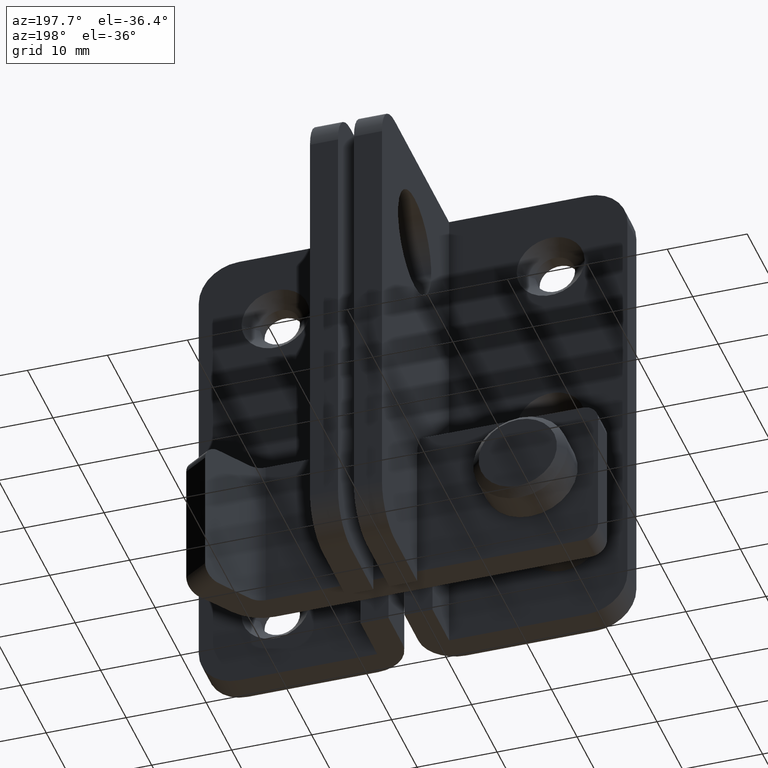
[diagram: clean part render]
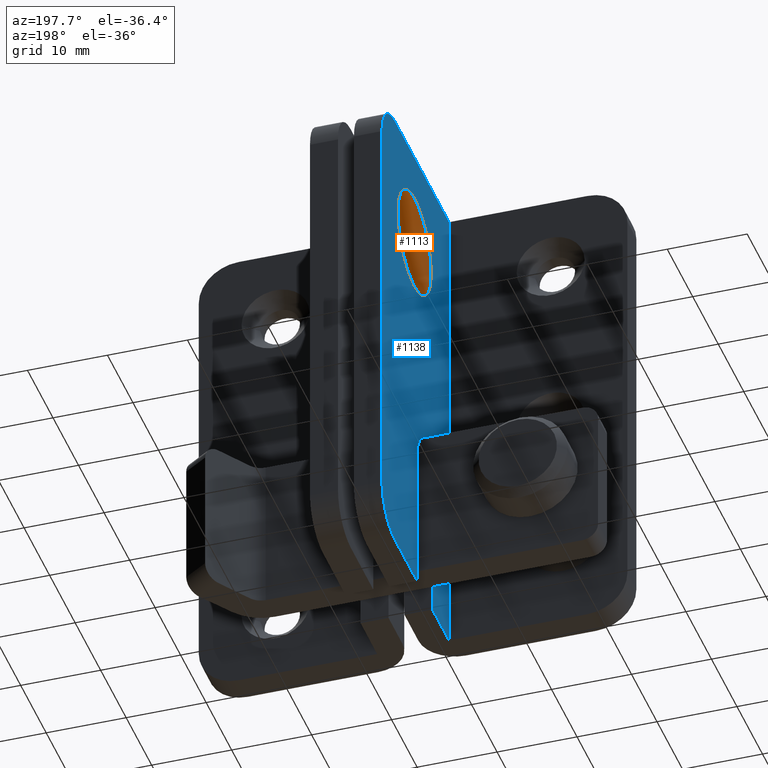
[diagram: same view with the hole feature highlighted: cylindrical wall and planar end face, labeled with their STEP entity ids]
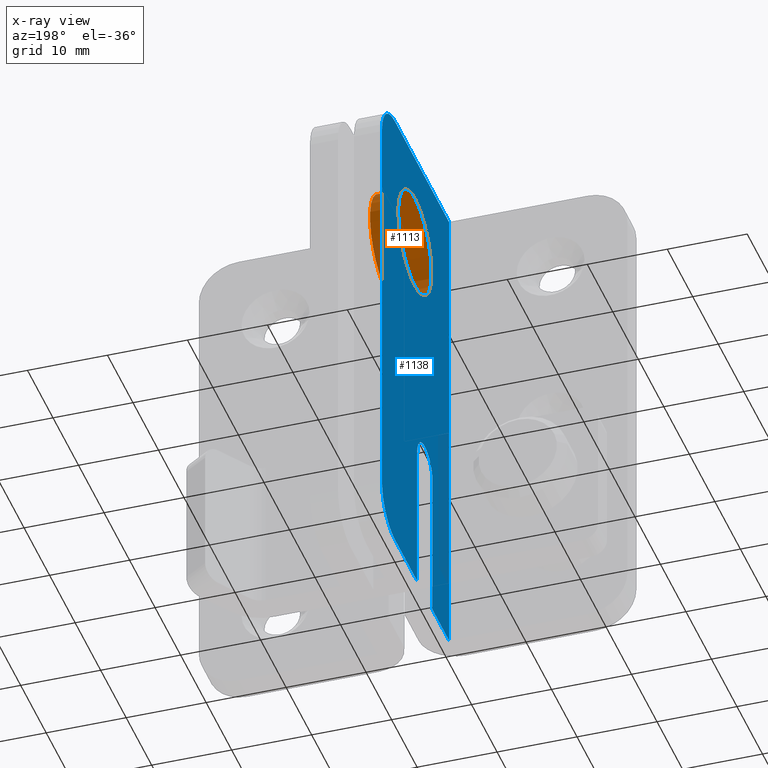
[diagram: x-ray of the same camera — body ghosted, the hole faces saturated]
A machine part, auxiliary view. The highlighted faces form one hole feature of diameter 13 mm: the cylindrical wall (entity #1113, orange) and its adjacent planar end face (entity #1138, blue) — they share a circular edge in the B-rep.
The next image is the same camera in x-ray (body ghosted, the hole faces saturated) — the bore reads through the body.
Wall:
#45=FACE_BOUND('',#182,.T.);
#114=FACE_OUTER_BOUND('',#181,.T.);
#181=EDGE_LOOP('',(#790));
#182=EDGE_LOOP('',(#791));
#460=CIRCLE('',#1187,6.5);
#461=CIRCLE('',#1188,6.5);
#524=VERTEX_POINT('',#1701);
#525=VERTEX_POINT('',#1703);
#636=EDGE_CURVE('',#524,#524,#460,.T.);
#637=EDGE_CURVE('',#525,#525,#461,.T.);
#790=ORIENTED_EDGE('',*,*,#636,.F.);
#791=ORIENTED_EDGE('',*,*,#637,.F.);
#1083=CYLINDRICAL_SURFACE('',#1186,6.5);
#1113=ADVANCED_FACE('',(#114,#45),#1083,.F.);
#1186=AXIS2_PLACEMENT_3D('',#1700,#1336,#1337);
#1187=AXIS2_PLACEMENT_3D('',#1702,#1338,#1339);
#1188=AXIS2_PLACEMENT_3D('',#1704,#1340,#1341);
#1336=DIRECTION('center_axis',(1.,5.55111512312578E-16,0.));
#1337=DIRECTION('ref_axis',(0.,0.,-1.));
#1338=DIRECTION('center_axis',(-1.,-1.490232247819E-16,0.));
#1339=DIRECTION('ref_axis',(0.,0.,-1.));
#1340=DIRECTION('center_axis',(1.,5.06565638612239E-16,0.));
#1341=DIRECTION('ref_axis',(0.,0.,-1.));
#1700=CARTESIAN_POINT('Origin',(22.3,17.,-12.5));
#1701=CARTESIAN_POINT('',(25.8,17.,-6.));
#1702=CARTESIAN_POINT('Origin',(25.8,17.,-12.5));
#1703=CARTESIAN_POINT('',(22.3,17.,-6.));
#1704=CARTESIAN_POINT('Origin',(22.3,17.,-12.5));
End face:
#63=FACE_BOUND('',#225,.T.);
#90=PLANE('',#1237);
#139=FACE_OUTER_BOUND('',#224,.T.);
#224=EDGE_LOOP('',(#882,#883,#884,#885,#886,#887,#888,#889,#890,#891));
#225=EDGE_LOOP('',(#892));
#281=LINE('',#1692,#371);
#285=LINE('',#1699,#375);
#286=LINE('',#1707,#376);
#297=LINE('',#1776,#387);
#303=LINE('',#1796,#393);
#306=LINE('',#1805,#396);
#310=LINE('',#1814,#400);
#371=VECTOR('',#1329,19.);
#375=VECTOR('',#1335,19.);
#376=VECTOR('',#1344,8.80000000000001);
#387=VECTOR('',#1421,6.49999999999999);
#393=VECTOR('',#1441,61.9);
#396=VECTOR('',#1452,51.9);
#400=VECTOR('',#1464,21.3);
#459=CIRCLE('',#1183,3.);
#461=CIRCLE('',#1188,6.5);
#484=CIRCLE('',#1232,5.);
#485=CIRCLE('',#1235,5.);
#518=VERTEX_POINT('',#1683);
#519=VERTEX_POINT('',#1685);
#521=VERTEX_POINT('',#1691);
#523=VERTEX_POINT('',#1697);
#525=VERTEX_POINT('',#1703);
#526=VERTEX_POINT('',#1706);
#551=VERTEX_POINT('',#1774);
#558=VERTEX_POINT('',#1794);
#559=VERTEX_POINT('',#1800);
#560=VERTEX_POINT('',#1804);
#561=VERTEX_POINT('',#1808);
#628=EDGE_CURVE('',#519,#518,#459,.T.);
#631=EDGE_CURVE('',#521,#519,#281,.T.);
#635=EDGE_CURVE('',#518,#523,#285,.T.);
#637=EDGE_CURVE('',#525,#525,#461,.T.);
#638=EDGE_CURVE('',#521,#526,#286,.T.);
#667=EDGE_CURVE('',#551,#523,#297,.T.);
#677=EDGE_CURVE('',#558,#551,#303,.T.);
#679=EDGE_CURVE('',#526,#559,#484,.T.);
#681=EDGE_CURVE('',#560,#559,#306,.T.);
#683=EDGE_CURVE('',#560,#561,#485,.T.);
#686=EDGE_CURVE('',#561,#558,#310,.T.);
#882=ORIENTED_EDGE('',*,*,#635,.T.);
#883=ORIENTED_EDGE('',*,*,#667,.F.);
#884=ORIENTED_EDGE('',*,*,#677,.F.);
#885=ORIENTED_EDGE('',*,*,#686,.F.);
#886=ORIENTED_EDGE('',*,*,#683,.F.);
#887=ORIENTED_EDGE('',*,*,#681,.T.);
#888=ORIENTED_EDGE('',*,*,#679,.F.);
#889=ORIENTED_EDGE('',*,*,#638,.F.);
#890=ORIENTED_EDGE('',*,*,#631,.T.);
#891=ORIENTED_EDGE('',*,*,#628,.T.);
#892=ORIENTED_EDGE('',*,*,#637,.T.);
#1138=ADVANCED_FACE('',(#139,#63),#90,.T.);
#1183=AXIS2_PLACEMENT_3D('',#1686,#1323,#1324);
#1188=AXIS2_PLACEMENT_3D('',#1704,#1340,#1341);
#1232=AXIS2_PLACEMENT_3D('',#1801,#1447,#1448);
#1235=AXIS2_PLACEMENT_3D('',#1809,#1456,#1457);
#1237=AXIS2_PLACEMENT_3D('',#1813,#1462,#1463);
#1323=DIRECTION('center_axis',(1.,5.06565638612239E-16,0.));
#1324=DIRECTION('ref_axis',(5.55111512312578E-16,-1.,0.));
#1329=DIRECTION('',(0.,0.,1.));
#1335=DIRECTION('',(-2.96000439721712E-32,5.84327907697451E-17,-1.));
#1340=DIRECTION('center_axis',(1.,5.06565638612239E-16,0.));
#1341=DIRECTION('ref_axis',(0.,0.,-1.));
#1344=DIRECTION('',(-5.06565638612239E-16,1.,0.));
#1421=DIRECTION('',(-5.06565638612239E-16,1.,0.));
#1441=DIRECTION('',(0.,0.,-1.));
#1447=DIRECTION('center_axis',(1.,5.06565638612239E-16,0.));
#1448=DIRECTION('ref_axis',(0.,0.707106781186547,-0.707106781186547));
#1452=DIRECTION('',(0.,0.,-1.));
#1456=DIRECTION('center_axis',(1.,5.06565638612239E-16,0.));
#1457=DIRECTION('ref_axis',(0.,0.707106781186547,0.707106781186547));
#1462=DIRECTION('center_axis',(-1.,-5.06565638612239E-16,0.));
#1463=DIRECTION('ref_axis',(-3.5527136788005E-16,1.,0.));
#1464=DIRECTION('',(5.06565638612239E-16,-1.,0.));
#1683=CARTESIAN_POINT('',(22.3,10.,-42.9));
#1685=CARTESIAN_POINT('',(22.3,16.,-42.9));
#1686=CARTESIAN_POINT('Origin',(22.3,13.,-42.9));
#1691=CARTESIAN_POINT('',(22.3,16.,-61.9));
#1692=CARTESIAN_POINT('',(22.3,16.,-30.95));
#1697=CARTESIAN_POINT('',(22.3,10.,-61.9));
#1699=CARTESIAN_POINT('',(22.3,10.,-21.45));
#1703=CARTESIAN_POINT('',(22.3,17.,-6.));
#1704=CARTESIAN_POINT('Origin',(22.3,17.,-12.5));
#1706=CARTESIAN_POINT('',(22.3,24.8,-61.9));
#1707=CARTESIAN_POINT('',(22.3,29.8,-61.9));
#1774=CARTESIAN_POINT('',(22.3,3.50000000000001,-61.9));
#1776=CARTESIAN_POINT('',(22.3,29.8,-61.9));
#1794=CARTESIAN_POINT('',(22.3,3.50000000000001,0.));
#1796=CARTESIAN_POINT('',(22.3,3.50000000000001,0.));
#1800=CARTESIAN_POINT('',(22.3,29.8,-56.9));
#1801=CARTESIAN_POINT('Origin',(22.3,24.8,-56.9));
#1804=CARTESIAN_POINT('',(22.3,29.8,-5.));
#1805=CARTESIAN_POINT('',(22.3,29.8,0.));
#1808=CARTESIAN_POINT('',(22.3,24.8,0.));
#1809=CARTESIAN_POINT('Origin',(22.3,24.8,-5.));
#1813=CARTESIAN_POINT('Origin',(22.3,3.50000000000001,0.));
#1814=CARTESIAN_POINT('',(22.3,29.8,0.));